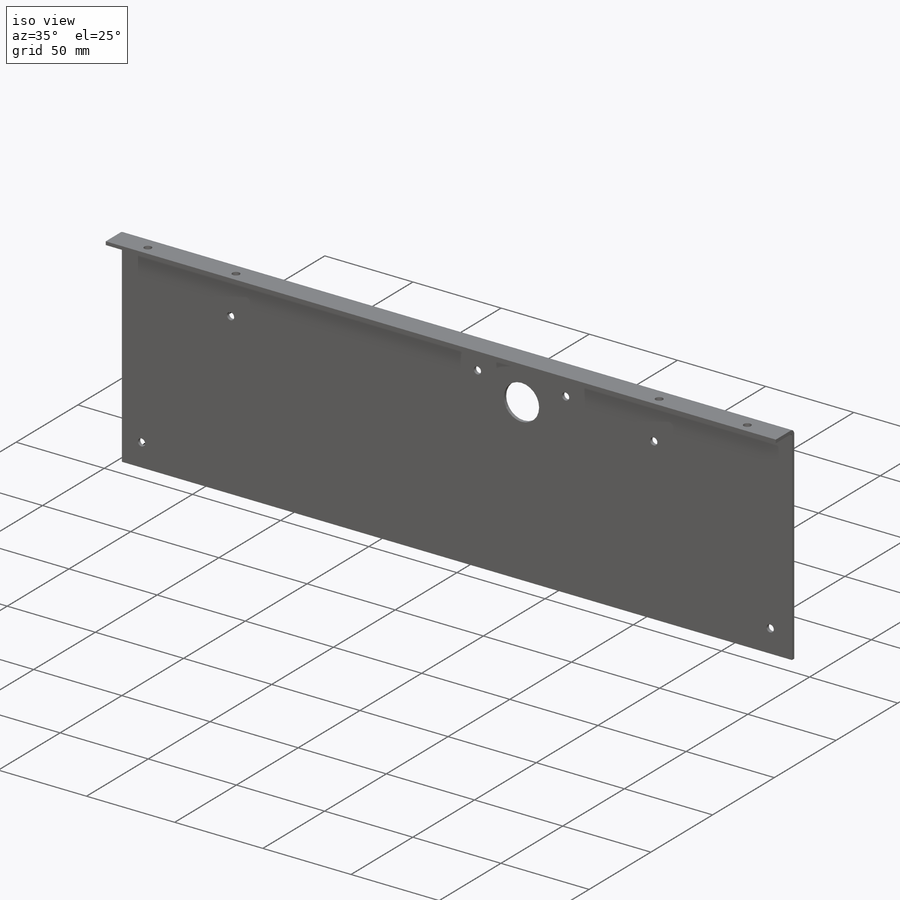
[diagram: iso view]
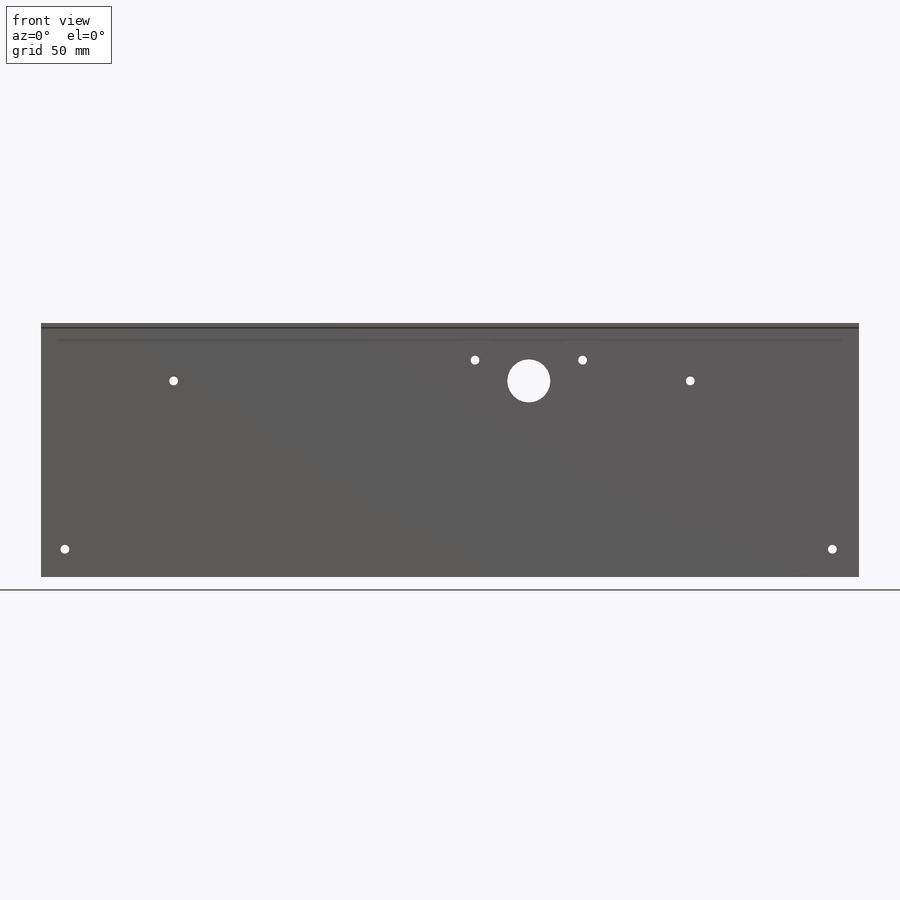
[diagram: front view]
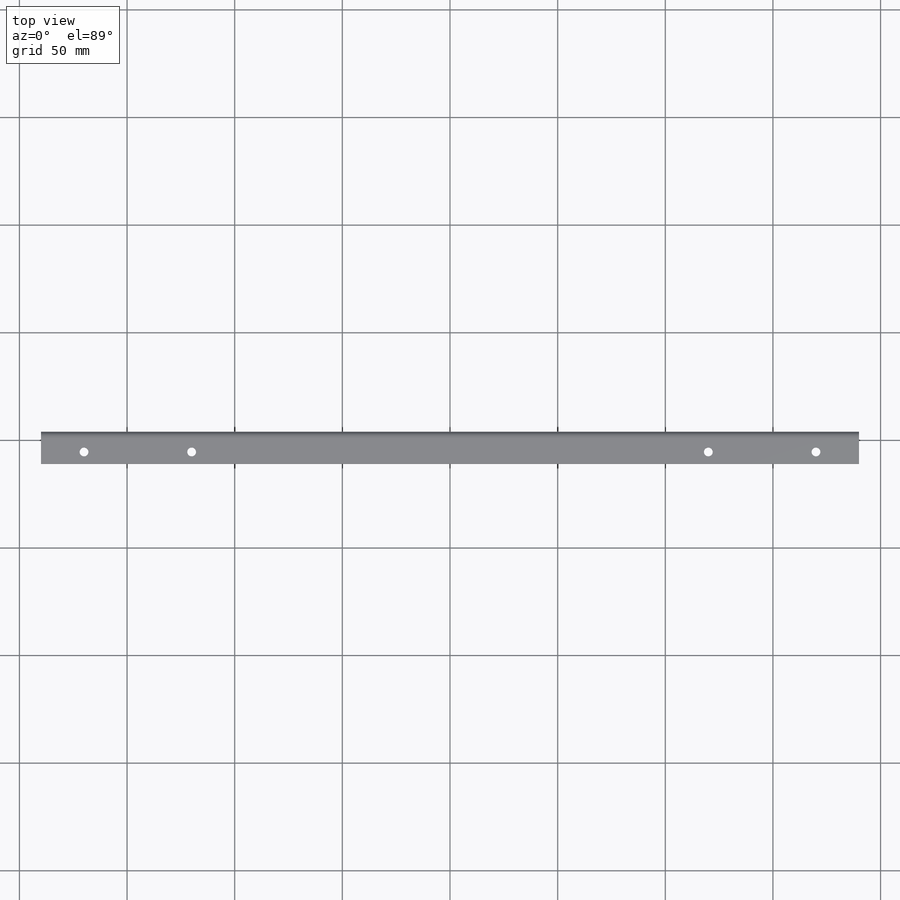
[diagram: top view]
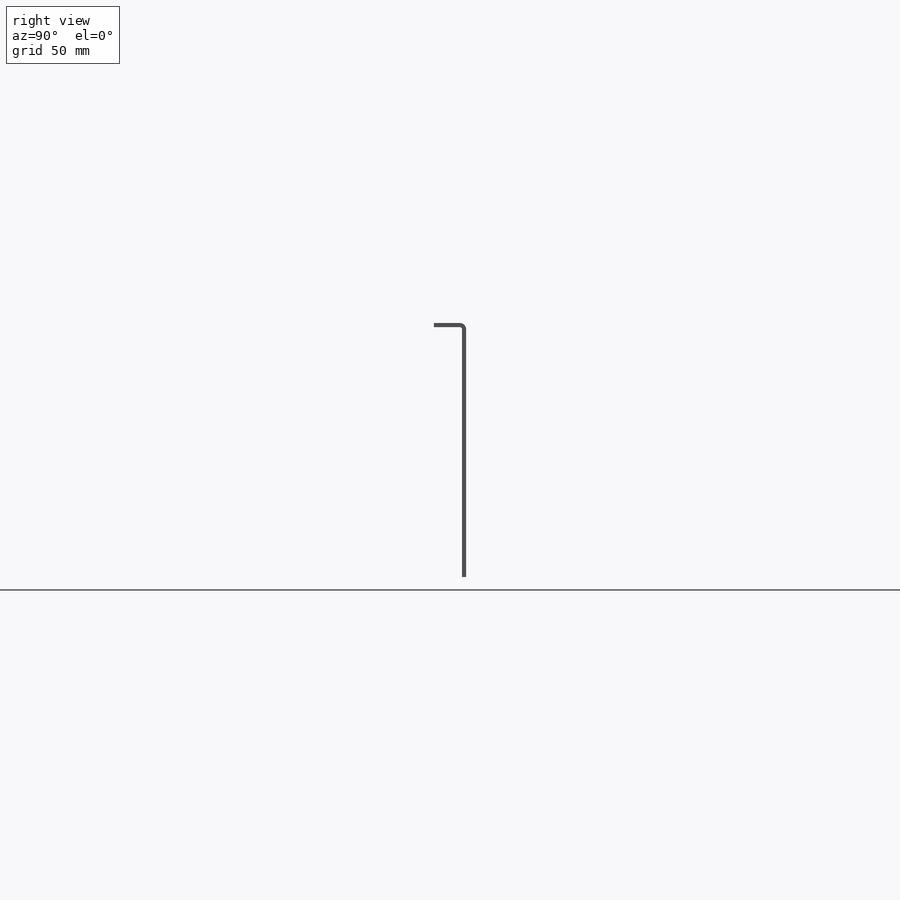
[diagram: right view]
SOLIDWORKS PART (.sldprt)
format: sldprt  version: not decoded by parser v0  size: 343,552 bytes
history: native  units: mm
features: sketch x23, sheet_metal_op x8, cut_extrude x5, material x1 + 7 further entries (+13 scaffold rows collapsed; 7 parser-record rows omitted)
feature tree (64):
  scaffold x13  (default folders/planes/origin — collapsed)
  material  "Material <not specified>"
  sketch  "Sketch1"  dims[c1.D1=118.0mm c1.D2=380.0mm c2.D1=1.27mm c2.D2=0.5 c2.D3=0.0mm c2.D6=500.0mm]
  sheet_metal_op  "Base-Flange1"
  sketch  "Sketch8"  dims[c1.D1=1.0mm c1.D4=90.0deg c1.D5=1.0 c1.D8=~0.60706mm c1.D9=~0.60706mm c2.D1=1.9mm c2.D2=500.0mm c2.D3=0.0mm c2.D6=10.0mm c2.D7=15.0mm]
  sketch  "Sketch9"  dims[c1.D1=20.0mm c1.D2=20.0mm c1.D3=5.0mm c1.D4=20.0mm c1.D5=20.0mm c1.D6=4.08mm c1.D7=4.08mm c2.D2=165.0mm c2.D3=75.0mm c2.D4=~153.389326mm c2.D5=27.0mm]
  cut_extrude  "Cut-Extrude1"  Depth=10mm
  sketch  "Sketch10"  dims[c1.D1=4.08mm c1.D3=4.08mm c1.D4=4.08mm c1.D5=4.08mm c1.D2=20.0mm c2.D3=50.0mm c2.D4=20.0mm c2.D5=50.0mm]
  cut_extrude  "Cut-Extrude2"  Depth=10mm
  sketch  "Sketch11"  dims[D1=4.08mm]
  cut_extrude  "Cut-Extrude3"  Depth=10mm
  sketch  "Sketch12"  dims[D1=4.08mm]
  cut_extrude  "Cut-Extrude4"  Depth=10mm
  sketch  "Sketch13"  dims[D1=30.0mm]
  cut_extrude  "Cut-Extrude5"  Depth=62mm
  sketch  "Bend-Lines1"
  sketch  "Bounding-Box1"
  sheet_metal_op  "Sheet-Metal1"
  "Flat-Pattern1"
  sketch  "Bend-Lines2"
  sketch  "Bounding-Box2"
  parser-record x7  (decoder bookkeeping rows leaked as tree rows — omitted from the tree; the rows remain in map.json)
  sheet_metal_op  "Sheet-Metal2"
  "Flat-Pattern1"
  sketch  "Bend-Lines2"
  sketch  "Bounding-Box2"
  sheet_metal_op  "Sheet-Metal3"
  "Flat-Pattern1"
  sketch  "Bend-Lines2"
  sketch  "Bounding-Box2"
  sheet_metal_op  "Sheet-Metal4"
  "Flat-Pattern1"
  sketch  "Bend-Lines2"
  sketch  "Bounding-Box2"
  sheet_metal_op  "Sheet-Metal5"
  "Flat-Pattern1"
  sketch  "Bend-Lines2"
  sketch  "Bounding-Box2"
  sheet_metal_op  "Sheet-Metal6"
  "Flat-Pattern1"
  sketch  "Bend-Lines2"
  sketch  "Bounding-Box2"
  sheet_metal_op  "Sheet-Metal7"
  "Flat-Pattern1"
  sketch  "Bend-Lines2"
  sketch  "Bounding-Box2"
decode coverage: 12 of 36 modeling features carry decoded parameters; 7 rows unclassified (native names shown)
note: ~ marks probable driven/reference dimensions
note: suppression state not decoded; provenance and decode notes live in map.json
